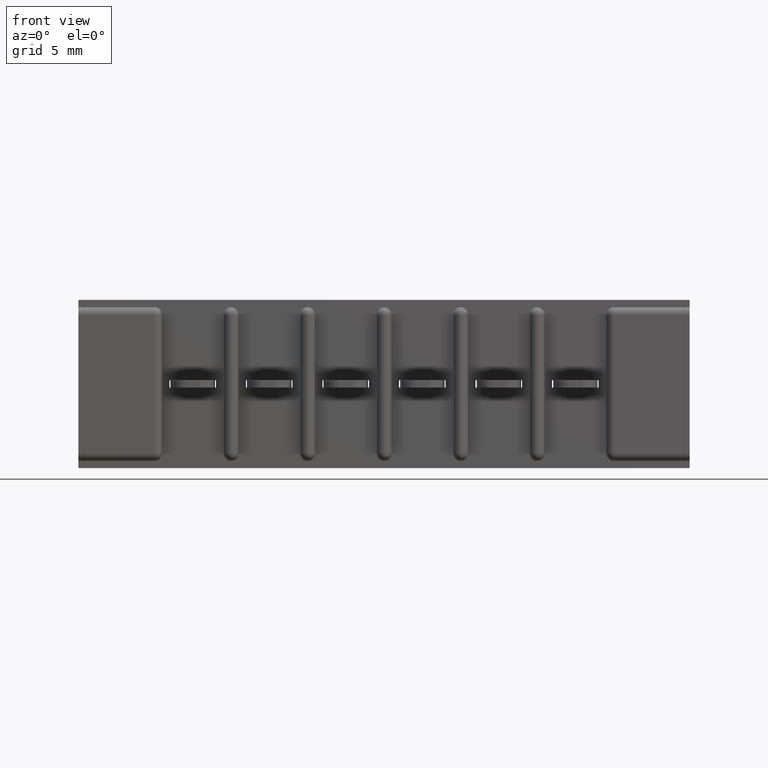
[diagram: clean part render]
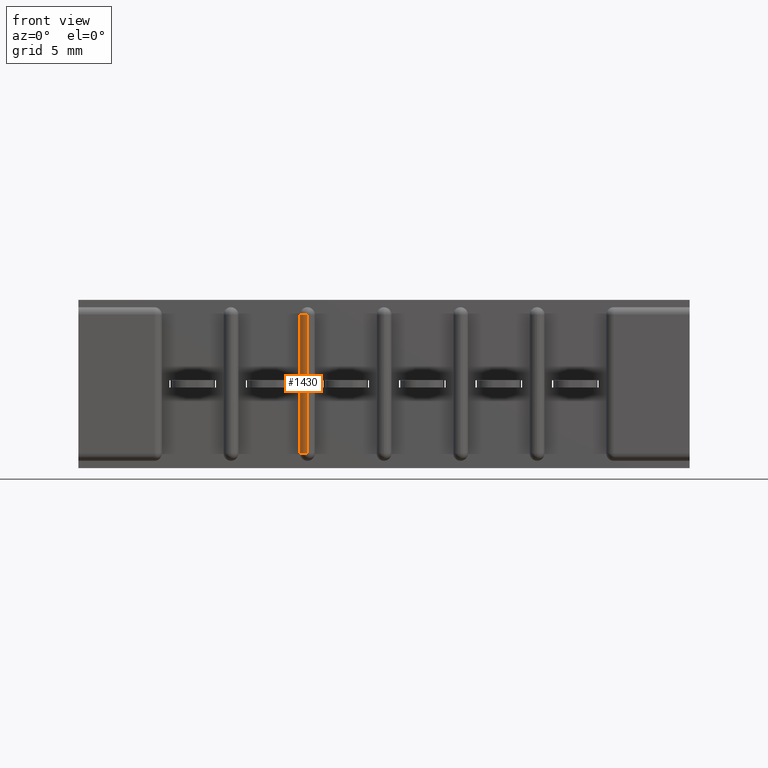
[diagram: same view with one face highlighted and labeled with its STEP entity id]
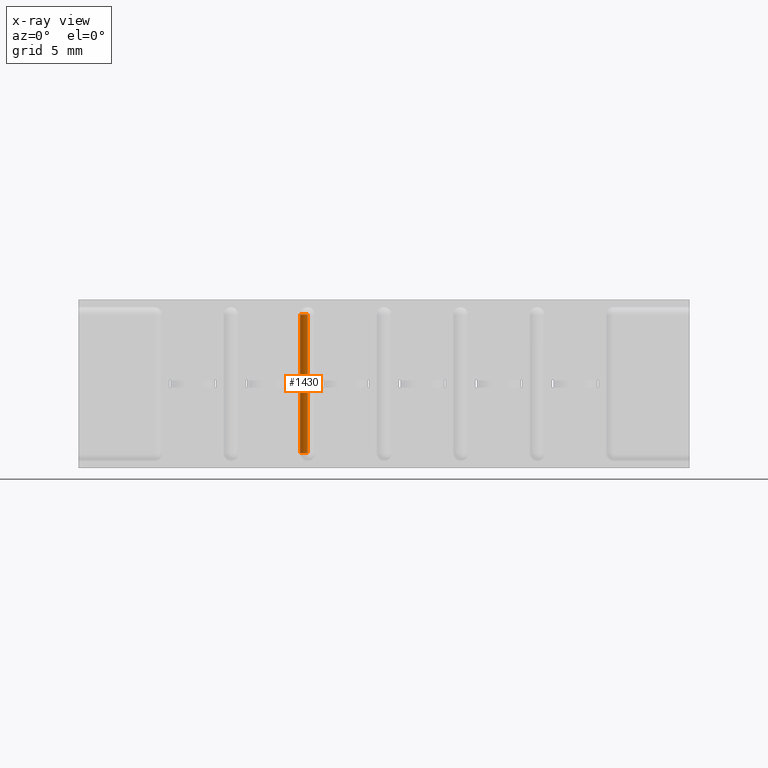
[diagram: x-ray of the same camera — body ghosted, the highlighted face saturated]
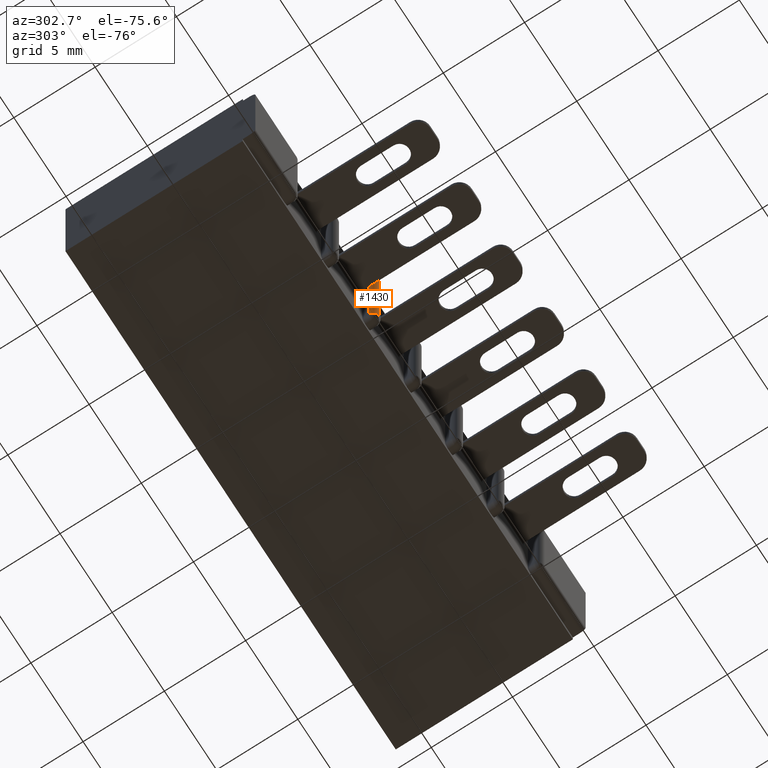
[diagram: same view with one face highlighted and labeled with its STEP entity id]
A machine part, front view. The second image highlights one B-rep face of the part: STEP entity #1430.
The next image is the same camera in x-ray: the body ghosted, the highlighted face saturated — about 0% of this face is hidden behind the body in this view.
A second angle (auxiliary view) of the same face is appended — the face is thin or edge-on in the first view.
In plain terms, the highlighted cylindrical surface (edge-blend (fillet) strip) has radius 0.381 mm, axis along (0, 0, -1).
Its self-contained STEP definition (entity closure, byte-faithful):
#501 = ORIENTED_EDGE ( 'NONE', *, *, #7721, .F. ) ;
#765 = CYLINDRICAL_SURFACE ( 'NONE', #5317, 0.01499999999999997700 ) ;
#910 = CARTESIAN_POINT ( 'NONE',  ( 0.7650000000000009000, 0.0000000000000000000, -0.3130000000000000600 ) ) ;
#946 = CARTESIAN_POINT ( 'NONE',  ( 0.7650000000000009000, 0.0000000000000000000, -0.3130000000000000600 ) ) ;
#997 = LINE ( 'NONE', #2051, #9676 ) ;
#1323 = DIRECTION ( 'NONE',  ( 2.845674993400278400E-016, 0.0000000000000000000, -1.000000000000000000 ) ) ;
#1430 = ADVANCED_FACE ( 'NONE', ( #7697 ), #765, .T. ) ;
#1804 = CARTESIAN_POINT ( 'NONE',  ( 0.7500000000000008900, 0.01499999999999997700, -0.3130000000000000600 ) ) ;
#1808 = CARTESIAN_POINT ( 'NONE',  ( 0.7650000000000009000, 0.0000000000000000000, -0.02999999999999995400 ) ) ;
#2051 = CARTESIAN_POINT ( 'NONE',  ( 0.7500000000000008900, 0.01499999999999997700, -0.02999999999999995700 ) ) ;
#2806 = DIRECTION ( 'NONE',  ( -2.181987215386777900E-016, 0.0000000000000000000, 1.000000000000000000 ) ) ;
#2984 = CIRCLE ( 'NONE', #4851, 0.01499999999999997700 ) ;
#3004 = AXIS2_PLACEMENT_3D ( 'NONE', #9469, #8671, #4012 ) ;
#3089 = ORIENTED_EDGE ( 'NONE', *, *, #9625, .F. ) ;
#3825 = CARTESIAN_POINT ( 'NONE',  ( 0.7650000000000009000, 0.01499999999999997700, -0.3280000000000020100 ) ) ;
#3864 = DIRECTION ( 'NONE',  ( 2.181987215386777900E-016, 0.0000000000000000000, -1.000000000000000000 ) ) ;
#4012 = DIRECTION ( 'NONE',  ( -1.000000000000000000, 0.0000000000000000000, 0.0000000000000000000 ) ) ;
#4270 = CARTESIAN_POINT ( 'NONE',  ( 0.7500000000000008900, 0.01499999999999997700, -0.02999999999999995700 ) ) ;
#4323 = VERTEX_POINT ( 'NONE', #910 ) ;
#4399 = EDGE_CURVE ( 'NONE', #6265, #4323, #8029, .T. ) ;
#4851 = AXIS2_PLACEMENT_3D ( 'NONE', #5218, #1323, #9872 ) ;
#4933 = DIRECTION ( 'NONE',  ( 2.181987215386777900E-016, -0.0000000000000000000, -1.000000000000000000 ) ) ;
#5218 = CARTESIAN_POINT ( 'NONE',  ( 0.7650000000000009000, 0.01499999999999999900, -0.02999999999999995400 ) ) ;
#5317 = AXIS2_PLACEMENT_3D ( 'NONE', #3825, #3864, #7163 ) ;
#6135 = CIRCLE ( 'NONE', #3004, 0.01499999999999997700 ) ;
#6265 = VERTEX_POINT ( 'NONE', #1808 ) ;
#6597 = VERTEX_POINT ( 'NONE', #4270 ) ;
#6727 = ORIENTED_EDGE ( 'NONE', *, *, #8482, .T. ) ;
#6990 = EDGE_LOOP ( 'NONE', ( #501, #8483, #6727, #3089 ) ) ;
#7163 = DIRECTION ( 'NONE',  ( -1.000000000000000000, 0.0000000000000000000, 0.0000000000000000000 ) ) ;
#7697 = FACE_OUTER_BOUND ( 'NONE', #6990, .T. ) ;
#7721 = EDGE_CURVE ( 'NONE', #4323, #8818, #6135, .T. ) ;
#7781 = VECTOR ( 'NONE', #4933, 39.37007874015748100 ) ;
#8029 = LINE ( 'NONE', #946, #7781 ) ;
#8482 = EDGE_CURVE ( 'NONE', #6265, #6597, #2984, .T. ) ;
#8483 = ORIENTED_EDGE ( 'NONE', *, *, #4399, .F. ) ;
#8671 = DIRECTION ( 'NONE',  ( 0.0000000000000000000, -0.0000000000000000000, -1.000000000000000000 ) ) ;
#8818 = VERTEX_POINT ( 'NONE', #1804 ) ;
#9469 = CARTESIAN_POINT ( 'NONE',  ( 0.7650000000000009000, 0.01499999999999999900, -0.3130000000000000600 ) ) ;
#9625 = EDGE_CURVE ( 'NONE', #8818, #6597, #997, .T. ) ;
#9676 = VECTOR ( 'NONE', #2806, 39.37007874015748100 ) ;
#9872 = DIRECTION ( 'NONE',  ( -1.000000000000000000, 0.0000000000000000000, -2.845674993400278400E-016 ) ) ;